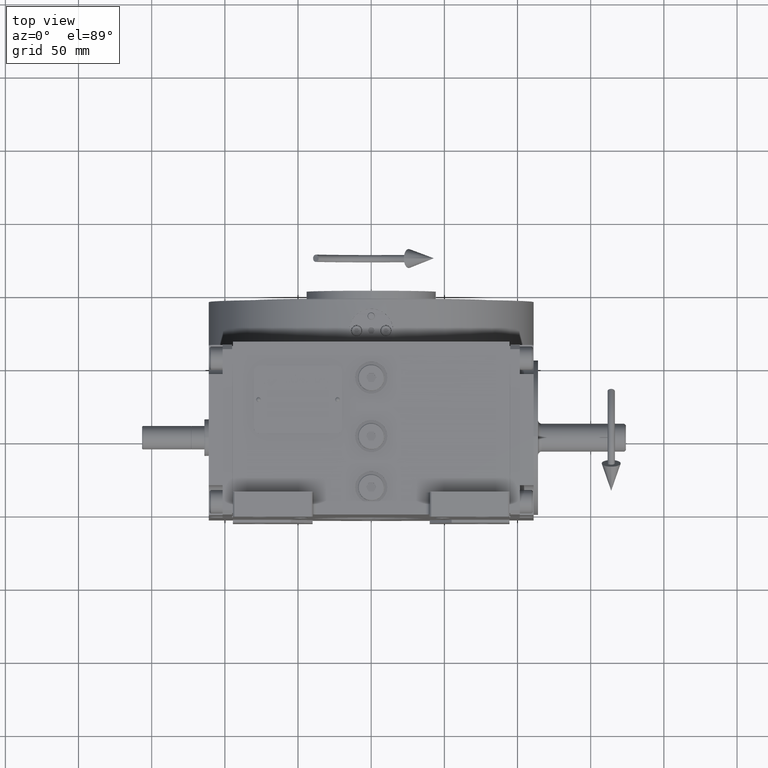
[diagram: clean part render]
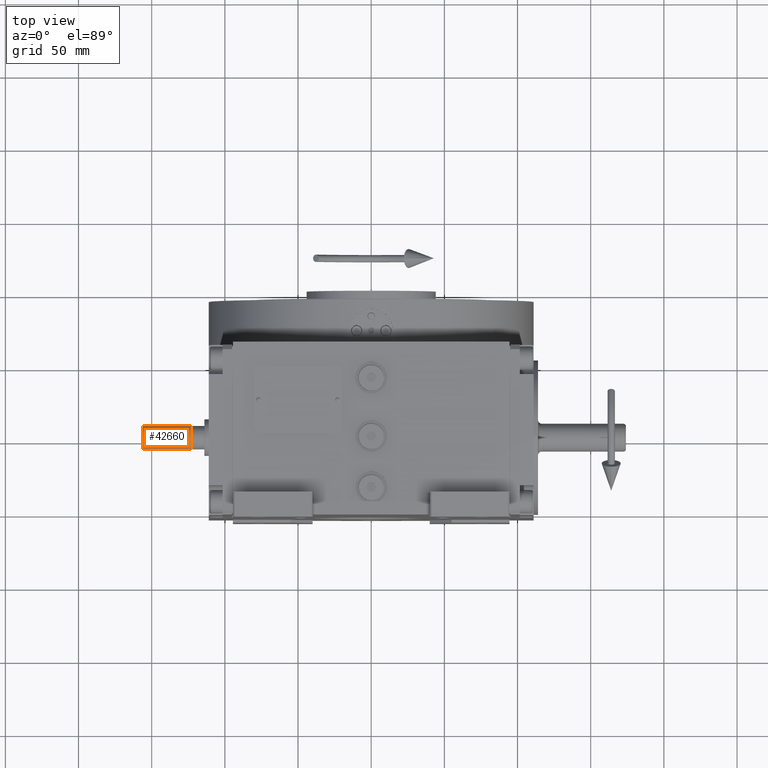
[diagram: same view with one face highlighted and labeled with its STEP entity id]
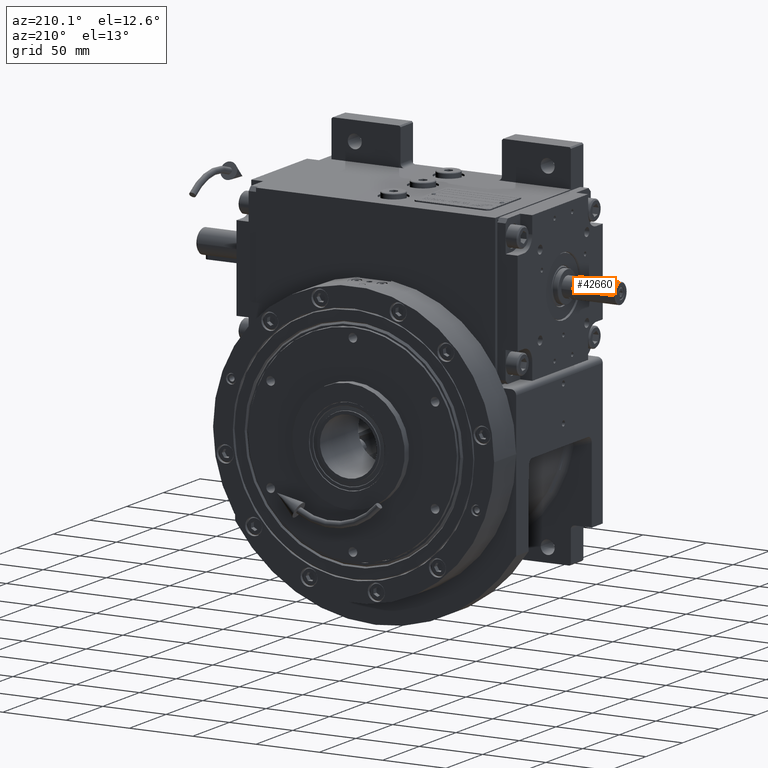
[diagram: same view with one face highlighted and labeled with its STEP entity id]
A machine part, top view. The second image highlights one B-rep face of the part: STEP entity #42660.
A second angle (auxiliary view) of the same face is appended — the face is thin or edge-on in the first view.
In plain terms, the highlighted cylindrical surface (edge-blend (fillet) strip) has radius 8 mm, axis along (-1, 0, -0).
Its self-contained STEP definition (entity closure, byte-faithful):
#1281 = DIRECTION ( 'NONE',  ( -4.634557818173444357E-30, -1.000000000000000000, -2.968504418126118906E-29 ) ) ;
#2502 = CARTESIAN_POINT ( 'NONE',  ( 1.221245327087672194E-12, -14.50000000000001243, 7.999999999999906741 ) ) ;
#3306 = VERTEX_POINT ( 'NONE', #16897 ) ;
#8736 = CIRCLE ( 'NONE', #22184, 8.000000000000000000 ) ;
#9825 = ORIENTED_EDGE ( 'NONE', *, *, #52533, .F. ) ;
#11375 = EDGE_CURVE ( 'NONE', #17595, #63996, #51079, .T. ) ;
#12832 = CARTESIAN_POINT ( 'NONE',  ( -8.326672684688674053E-14, -15.00000000000001421, -2.637753651832758224E-27 ) ) ;
#13779 = AXIS2_PLACEMENT_3D ( 'NONE', #12832, #1281, #60302 ) ;
#14331 = ORIENTED_EDGE ( 'NONE', *, *, #11375, .F. ) ;
#16897 = CARTESIAN_POINT ( 'NONE',  ( 4.718447854656915297E-13, 18.50000000000048672, 7.999999999999906741 ) ) ;
#17595 = VERTEX_POINT ( 'NONE', #41172 ) ;
#18437 = DIRECTION ( 'NONE',  ( -1.618637140462284966E-14, -2.168404344971008868E-16, -1.000000000000000000 ) ) ;
#19901 = DIRECTION ( 'NONE',  ( 4.634557818173444357E-30, 1.000000000000000000, 2.968504418126118906E-29 ) ) ;
#22184 = AXIS2_PLACEMENT_3D ( 'NONE', #37498, #19901, #53302 ) ;
#24333 = CARTESIAN_POINT ( 'NONE',  ( -5.551115123125782702E-14, 18.50000000000048672, -8.000000000000094147 ) ) ;
#27962 = FACE_OUTER_BOUND ( 'NONE', #63395, .T. ) ;
#28960 = EDGE_CURVE ( 'NONE', #63996, #63854, #44623, .T. ) ;
#32445 = EDGE_CURVE ( 'NONE', #63854, #3306, #44673, .T. ) ;
#34263 = CARTESIAN_POINT ( 'NONE',  ( -8.326672684688674053E-14, -14.50000000000001243, -8.881784197021228254E-16 ) ) ;
#35630 = AXIS2_PLACEMENT_3D ( 'NONE', #34263, #66617, #18437 ) ;
#37498 = CARTESIAN_POINT ( 'NONE',  ( 0.000000000000000000, 18.50000000000048672, -8.881784197001136952E-16 ) ) ;
#40281 = CARTESIAN_POINT ( 'NONE',  ( -8.326672684688674053E-14, -14.50000000000001243, -8.000000000000094147 ) ) ;
#41172 = CARTESIAN_POINT ( 'NONE',  ( -8.326672684688674053E-14, 18.50000000000048672, -8.000000000000094147 ) ) ;
#42660 = ADVANCED_FACE ( 'NONE', ( #27962 ), #61010, .T. ) ;
#43146 = CARTESIAN_POINT ( 'NONE',  ( 1.065553201229363367E-08, -14.50000000007528556, 7.999999999924615857 ) ) ;
#44623 = CIRCLE ( 'NONE', #35630, 8.000000000000000000 ) ;
#44673 = LINE ( 'NONE', #2502, #63949 ) ;
#45817 = DIRECTION ( 'NONE',  ( -4.634557818173444357E-30, -1.000000000000000000, -2.968504418126118906E-29 ) ) ;
#51079 = LINE ( 'NONE', #24333, #59527 ) ;
#52267 = ORIENTED_EDGE ( 'NONE', *, *, #32445, .F. ) ;
#52533 = EDGE_CURVE ( 'NONE', #3306, #17595, #8736, .T. ) ;
#53302 = DIRECTION ( 'NONE',  ( 1.641985838700010046E-14, 0.000000000000000000, 1.000000000000000000 ) ) ;
#55585 = DIRECTION ( 'NONE',  ( 4.634557818173444357E-30, 1.000000000000000000, 2.968504418126118906E-29 ) ) ;
#59527 = VECTOR ( 'NONE', #45817, 1000.000000000000000 ) ;
#60157 = ORIENTED_EDGE ( 'NONE', *, *, #28960, .F. ) ;
#60302 = DIRECTION ( 'NONE',  ( -1.654232306691483561E-14, 0.000000000000000000, -1.000000000000000000 ) ) ;
#61010 = CYLINDRICAL_SURFACE ( 'NONE', #13779, 8.000000000000000000 ) ;
#63395 = EDGE_LOOP ( 'NONE', ( #14331, #9825, #52267, #60157 ) ) ;
#63854 = VERTEX_POINT ( 'NONE', #43146 ) ;
#63949 = VECTOR ( 'NONE', #55585, 1000.000000000000000 ) ;
#63996 = VERTEX_POINT ( 'NONE', #40281 ) ;
#66617 = DIRECTION ( 'NONE',  ( -2.220446049250370273E-16, -1.000000000000000000, 2.220446049249983978E-16 ) ) ;